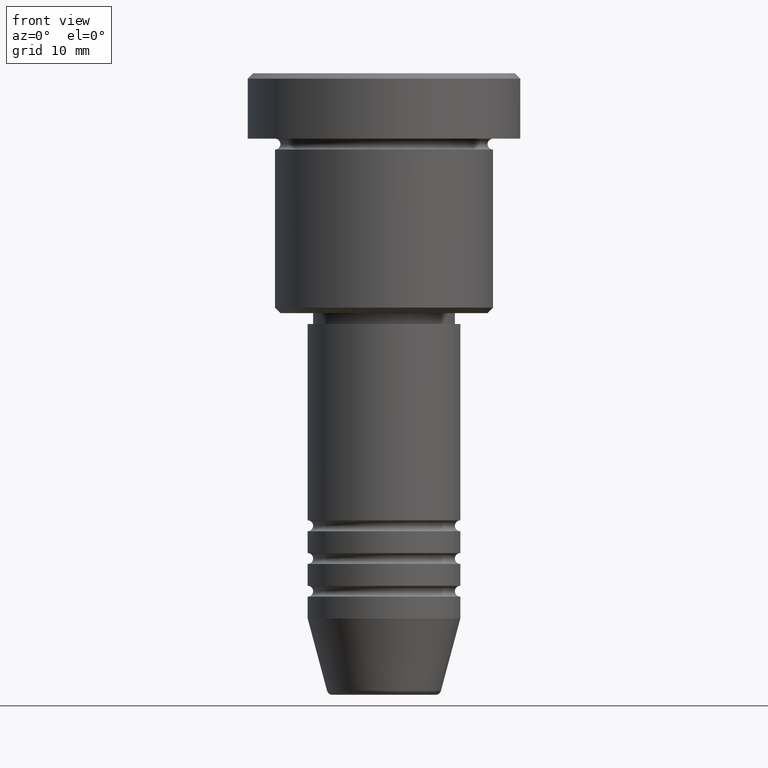
[diagram: clean part render]
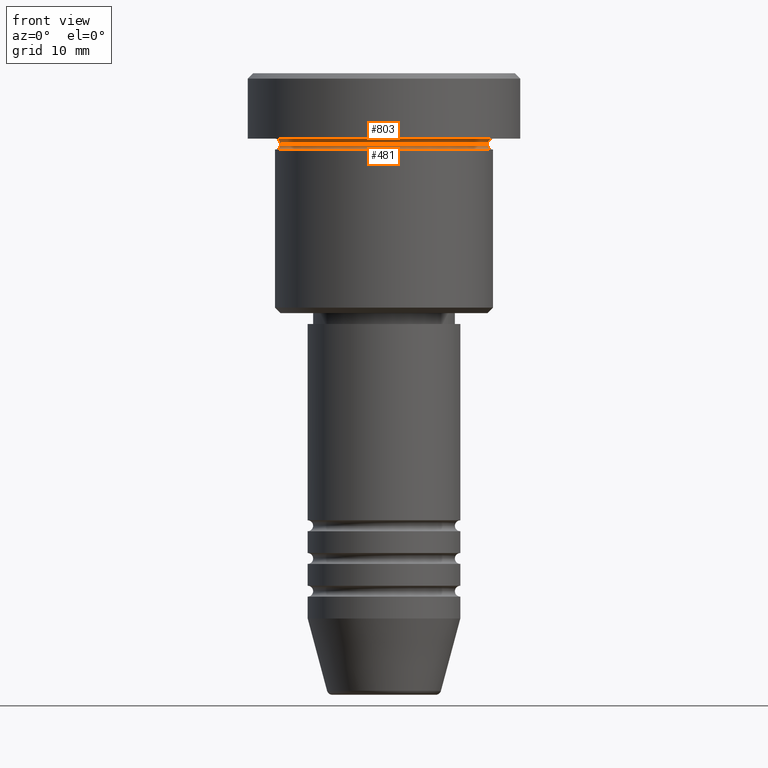
[diagram: same view with one multi-face feature highlighted, each face labeled with its STEP entity id]
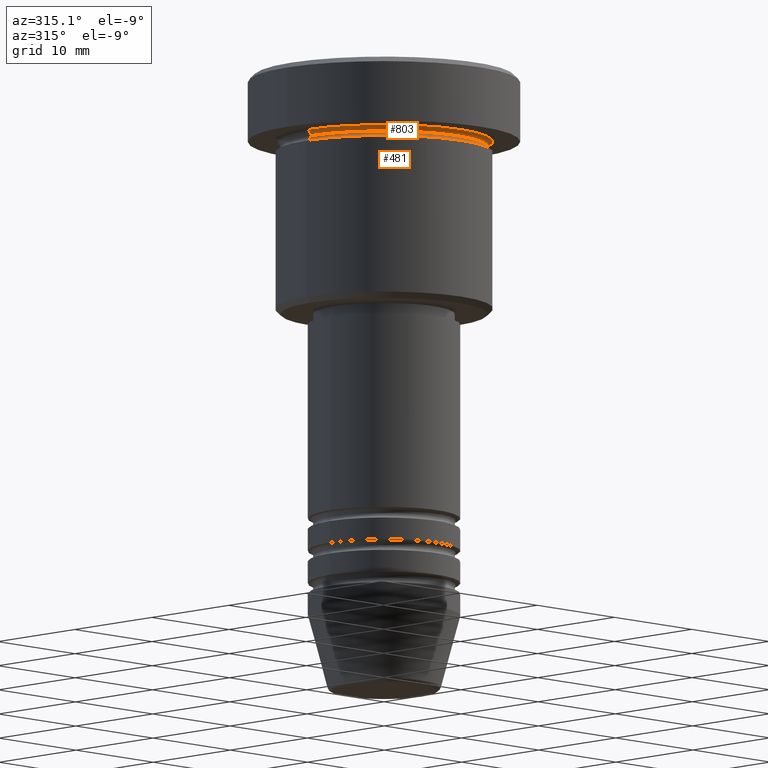
[diagram: same view with one multi-face feature highlighted, each face labeled with its STEP entity id]
A machine part, front view. The highlighted faces form ONE feature: a constant-radius fillet chain: 2 tangent blend faces with common blend radius 0.5 mm. The faces share edges in the B-rep.
A second angle (auxiliary view) of the same feature is appended — it is thin or edge-on in the first view.
Their STEP definitions:
[1] entity #803 (Torus):
#10 = VERTEX_POINT ( 'NONE', #956 ) ;
#39 = EDGE_CURVE ( 'NONE', #731, #873, #742, .T. ) ;
#70 = DIRECTION ( 'NONE',  ( -0.000000000000000000, -1.000000000000000000, -0.000000000000000000 ) ) ;
#137 = DIRECTION ( 'NONE',  ( -0.000000000000000000, -0.000000000000000000, 1.000000000000000000 ) ) ;
#141 = ORIENTED_EDGE ( 'NONE', *, *, #314, .F. ) ;
#170 = DIRECTION ( 'NONE',  ( -0.000000000000000000, -0.000000000000000000, 1.000000000000000000 ) ) ;
#195 = EDGE_CURVE ( 'NONE', #514, #10, #1098, .T. ) ;
#212 = FACE_OUTER_BOUND ( 'NONE', #966, .T. ) ;
#293 = CARTESIAN_POINT ( 'NONE',  ( -10.00000000000000000, 0.000000000000000000, -5.999999999999996447 ) ) ;
#309 = DIRECTION ( 'NONE',  ( 1.000000000000000000, 0.000000000000000000, 0.000000000000000000 ) ) ;
#312 = CARTESIAN_POINT ( 'NONE',  ( 0.000000000000000000, 0.000000000000000000, -6.499999999999997335 ) ) ;
#314 = EDGE_CURVE ( 'NONE', #731, #514, #730, .T. ) ;
#418 = ORIENTED_EDGE ( 'NONE', *, *, #39, .T. ) ;
#423 = DIRECTION ( 'NONE',  ( -1.000000000000000000, 0.000000000000000000, 0.000000000000000000 ) ) ;
#435 = CARTESIAN_POINT ( 'NONE',  ( 0.000000000000000000, 0.000000000000000000, -5.999999999999996447 ) ) ;
#462 = AXIS2_PLACEMENT_3D ( 'NONE', #857, #624, #1162 ) ;
#514 = VERTEX_POINT ( 'NONE', #293 ) ;
#558 = ORIENTED_EDGE ( 'NONE', *, *, #831, .T. ) ;
#624 = DIRECTION ( 'NONE',  ( -1.224646799147353207E-16, 1.000000000000000000, 0.000000000000000000 ) ) ;
#666 = AXIS2_PLACEMENT_3D ( 'NONE', #435, #170, #423 ) ;
#668 = AXIS2_PLACEMENT_3D ( 'NONE', #786, #70, #690 ) ;
#690 = DIRECTION ( 'NONE',  ( 0.000000000000000000, 0.000000000000000000, -1.000000000000000000 ) ) ;
#726 = CIRCLE ( 'NONE', #462, 0.5000000000000004441 ) ;
#730 = CIRCLE ( 'NONE', #668, 0.5000000000000004441 ) ;
#731 = VERTEX_POINT ( 'NONE', #1053 ) ;
#742 = CIRCLE ( 'NONE', #931, 9.500000000000000000 ) ;
#786 = CARTESIAN_POINT ( 'NONE',  ( -10.00000000000000000, 0.000000000000000000, -6.499999999999997335 ) ) ;
#803 = ADVANCED_FACE ( 'NONE', ( #212 ), #1013, .F. ) ;
#831 = EDGE_CURVE ( 'NONE', #873, #10, #726, .T. ) ;
#848 = CARTESIAN_POINT ( 'NONE',  ( 0.000000000000000000, 0.000000000000000000, -6.499999999999997335 ) ) ;
#857 = CARTESIAN_POINT ( 'NONE',  ( 10.00000000000000000, 1.224646799147353256E-15, -6.499999999999997335 ) ) ;
#873 = VERTEX_POINT ( 'NONE', #889 ) ;
#889 = CARTESIAN_POINT ( 'NONE',  ( 9.500000000000000000, 0.000000000000000000, -6.499999999999997335 ) ) ;
#927 = AXIS2_PLACEMENT_3D ( 'NONE', #312, #938, #1043 ) ;
#931 = AXIS2_PLACEMENT_3D ( 'NONE', #848, #137, #309 ) ;
#938 = DIRECTION ( 'NONE',  ( 0.000000000000000000, 0.000000000000000000, -1.000000000000000000 ) ) ;
#956 = CARTESIAN_POINT ( 'NONE',  ( 10.00000000000000000, 1.224646799147353256E-15, -5.999999999999996447 ) ) ;
#966 = EDGE_LOOP ( 'NONE', ( #418, #558, #1100, #141 ) ) ;
#1013 = TOROIDAL_SURFACE ( 'NONE', #927, 10.00000000000000000, 0.5000000000000000000 ) ;
#1043 = DIRECTION ( 'NONE',  ( -1.000000000000000000, 0.000000000000000000, 0.000000000000000000 ) ) ;
#1053 = CARTESIAN_POINT ( 'NONE',  ( -9.500000000000000000, 1.194030629168669469E-15, -6.499999999999997335 ) ) ;
#1098 = CIRCLE ( 'NONE', #666, 10.00000000000000000 ) ;
#1100 = ORIENTED_EDGE ( 'NONE', *, *, #195, .F. ) ;
#1162 = DIRECTION ( 'NONE',  ( -1.000000000000000000, -1.224646799147353454E-16, 0.000000000000000000 ) ) ;
[2] entity #481 (Torus):
#21 = ORIENTED_EDGE ( 'NONE', *, *, #39, .F. ) ;
#39 = EDGE_CURVE ( 'NONE', #731, #873, #742, .T. ) ;
#41 = DIRECTION ( 'NONE',  ( -0.000000000000000000, -0.000000000000000000, 1.000000000000000000 ) ) ;
#102 = CIRCLE ( 'NONE', #322, 0.5000000000000004441 ) ;
#122 = EDGE_CURVE ( 'NONE', #731, #838, #231, .T. ) ;
#137 = DIRECTION ( 'NONE',  ( -0.000000000000000000, -0.000000000000000000, 1.000000000000000000 ) ) ;
#160 = CIRCLE ( 'NONE', #822, 10.00000000000000000 ) ;
#196 = DIRECTION ( 'NONE',  ( 1.000000000000000000, 0.000000000000000000, 0.000000000000000000 ) ) ;
#231 = CIRCLE ( 'NONE', #369, 0.5000000000000004441 ) ;
#232 = CARTESIAN_POINT ( 'NONE',  ( 10.00000000000000000, 0.000000000000000000, -6.999999999999996447 ) ) ;
#256 = CARTESIAN_POINT ( 'NONE',  ( -10.00000000000000000, 1.224646799147353256E-15, -6.999999999999996447 ) ) ;
#270 = EDGE_LOOP ( 'NONE', ( #21, #512, #359, #1064 ) ) ;
#292 = DIRECTION ( 'NONE',  ( -1.000000000000000000, 1.224646799147353454E-16, 0.000000000000000000 ) ) ;
#309 = DIRECTION ( 'NONE',  ( 1.000000000000000000, 0.000000000000000000, 0.000000000000000000 ) ) ;
#322 = AXIS2_PLACEMENT_3D ( 'NONE', #377, #568, #1010 ) ;
#328 = TOROIDAL_SURFACE ( 'NONE', #1121, 10.00000000000000000, 0.5000000000000000000 ) ;
#331 = DIRECTION ( 'NONE',  ( -0.000000000000000000, -0.000000000000000000, 1.000000000000000000 ) ) ;
#339 = DIRECTION ( 'NONE',  ( 1.000000000000000000, 0.000000000000000000, 0.000000000000000000 ) ) ;
#345 = EDGE_CURVE ( 'NONE', #838, #366, #160, .T. ) ;
#359 = ORIENTED_EDGE ( 'NONE', *, *, #345, .T. ) ;
#366 = VERTEX_POINT ( 'NONE', #232 ) ;
#369 = AXIS2_PLACEMENT_3D ( 'NONE', #871, #1113, #292 ) ;
#377 = CARTESIAN_POINT ( 'NONE',  ( 10.00000000000000000, 0.000000000000000000, -6.499999999999997335 ) ) ;
#481 = ADVANCED_FACE ( 'NONE', ( #587 ), #328, .F. ) ;
#512 = ORIENTED_EDGE ( 'NONE', *, *, #122, .T. ) ;
#568 = DIRECTION ( 'NONE',  ( 0.000000000000000000, -1.000000000000000000, 0.000000000000000000 ) ) ;
#587 = FACE_OUTER_BOUND ( 'NONE', #270, .T. ) ;
#649 = EDGE_CURVE ( 'NONE', #873, #366, #102, .T. ) ;
#731 = VERTEX_POINT ( 'NONE', #1053 ) ;
#742 = CIRCLE ( 'NONE', #931, 9.500000000000000000 ) ;
#794 = CARTESIAN_POINT ( 'NONE',  ( 0.000000000000000000, 0.000000000000000000, -6.999999999999996447 ) ) ;
#822 = AXIS2_PLACEMENT_3D ( 'NONE', #794, #331, #339 ) ;
#838 = VERTEX_POINT ( 'NONE', #256 ) ;
#848 = CARTESIAN_POINT ( 'NONE',  ( 0.000000000000000000, 0.000000000000000000, -6.499999999999997335 ) ) ;
#854 = CARTESIAN_POINT ( 'NONE',  ( 0.000000000000000000, 0.000000000000000000, -6.499999999999997335 ) ) ;
#871 = CARTESIAN_POINT ( 'NONE',  ( -10.00000000000000000, 1.224646799147353256E-15, -6.499999999999997335 ) ) ;
#873 = VERTEX_POINT ( 'NONE', #889 ) ;
#889 = CARTESIAN_POINT ( 'NONE',  ( 9.500000000000000000, 0.000000000000000000, -6.499999999999997335 ) ) ;
#931 = AXIS2_PLACEMENT_3D ( 'NONE', #848, #137, #309 ) ;
#1010 = DIRECTION ( 'NONE',  ( 0.000000000000000000, 0.000000000000000000, -1.000000000000000000 ) ) ;
#1053 = CARTESIAN_POINT ( 'NONE',  ( -9.500000000000000000, 1.194030629168669469E-15, -6.499999999999997335 ) ) ;
#1064 = ORIENTED_EDGE ( 'NONE', *, *, #649, .F. ) ;
#1113 = DIRECTION ( 'NONE',  ( 1.224646799147353207E-16, 1.000000000000000000, 0.000000000000000000 ) ) ;
#1121 = AXIS2_PLACEMENT_3D ( 'NONE', #854, #41, #196 ) ;